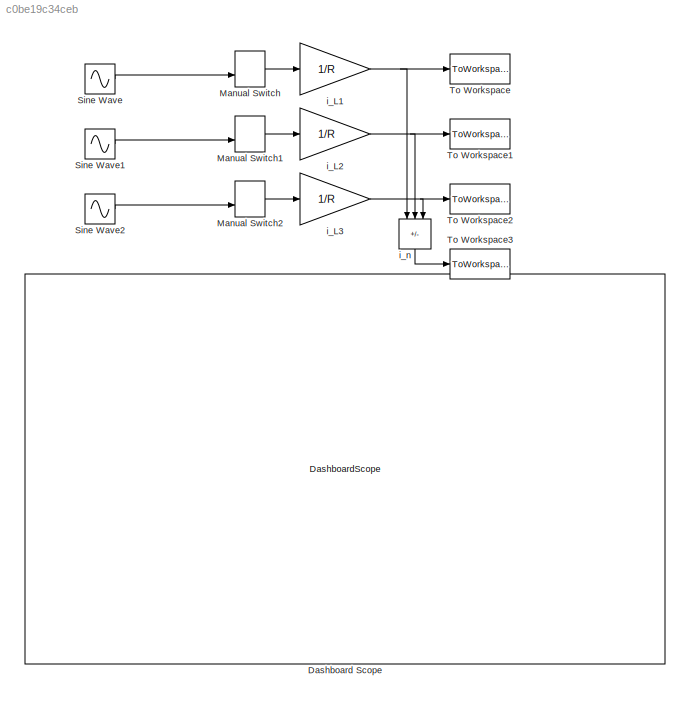
MODEL slx_c0be19c34ceb
KIND model
CONFIG AbsTol = auto
CONFIG EnableMultiTasking = off
CONFIG FixedStep = 0.0001
CONFIG MaxStep = auto
CONFIG MinStep = auto
CONFIG RelTol = 1e-3
CONFIG SampleTimeConstraint = Unconstrained
CONFIG Solver = FixedStepAuto
CONFIG SolverName = FixedStepAuto
CONFIG StartTime = 0.0
CONFIG StopTime = 0.03
BLOCK [DashboardScope] Dashboard Scope
BLOCK [ManualSwitch] Manual Switch
  CurrentSetting = 0
BLOCK [ManualSwitch] Manual Switch1
  CurrentSetting = 0
BLOCK [ManualSwitch] Manual Switch2
  CurrentSetting = 0
BLOCK [Sin] Sine Wave
  Amplitude = sqrt(2)*127
  Frequency = 100*pi
  Ports = [0, 1]
  SampleTime = 0
BLOCK [Sin] Sine Wave1
  Amplitude = sqrt(2)*127
  Frequency = 100*pi
  Phase = -(2/3)*pi
  Ports = [0, 1]
  SampleTime = 0
BLOCK [Sin] Sine Wave2
  Amplitude = sqrt(2)*127
  Frequency = 100*pi
  Phase = -4*pi/3
  Ports = [0, 1]
  SampleTime = 0
BLOCK [ToWorkspace] To Workspace
  FixptAsFi = on
  MaxDataPoints = inf
  Ports = [1]
  SampleTime = -1
  SaveFormat = Timeseries
  VariableName = il1
BLOCK [ToWorkspace] To Workspace1
  FixptAsFi = on
  MaxDataPoints = inf
  Ports = [1]
  SampleTime = -1
  SaveFormat = Timeseries
  VariableName = il2
BLOCK [ToWorkspace] To Workspace2
  FixptAsFi = on
  MaxDataPoints = inf
  Ports = [1]
  SampleTime = -1
  SaveFormat = Timeseries
  VariableName = il3
BLOCK [ToWorkspace] To Workspace3
  FixptAsFi = on
  MaxDataPoints = inf
  Ports = [1]
  SampleTime = -1
  SaveFormat = Timeseries
  VariableName = in
BLOCK [Gain] i_L1
  Gain = 1/R
BLOCK [Gain] i_L2 
  Gain = 1/R
BLOCK [Gain] i_L3
  Gain = 1/R
BLOCK [Sum] i_n
  IconShape = rectangular
  Inputs = ---
  NameLocation = left
  Ports = [3, 1]
LINE Manual Switch1:1 -> i_L2 :1
LINE Manual Switch2:1 -> i_L3:1
LINE Manual Switch:1 -> i_L1:1
LINE Sine Wave1:1 -> Manual Switch1:2
LINE Sine Wave2:1 -> Manual Switch2:2
LINE Sine Wave:1 -> Manual Switch:2
NET i_L1:1 -> To Workspace:1, i_n:1
NET i_L2 :1 -> To Workspace1:1, i_n:2
NET i_L3:1 -> To Workspace2:1, i_n:3
LINE i_n:1 -> To Workspace3:1
note: NET lines group one-source signal fan-out (src -> all destinations, sorted); 1:1 wires keep LINE
